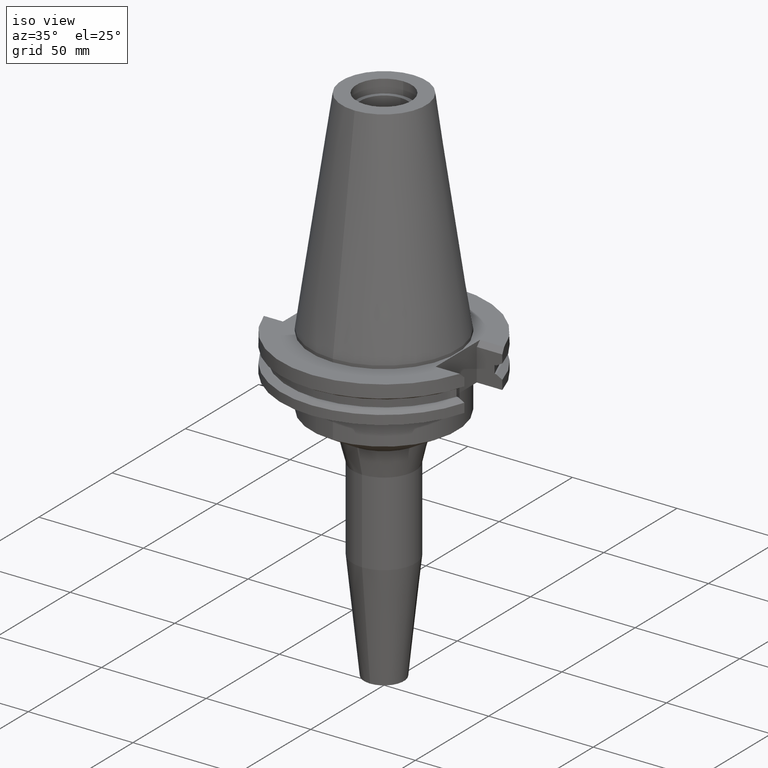
[diagram: clean part render]
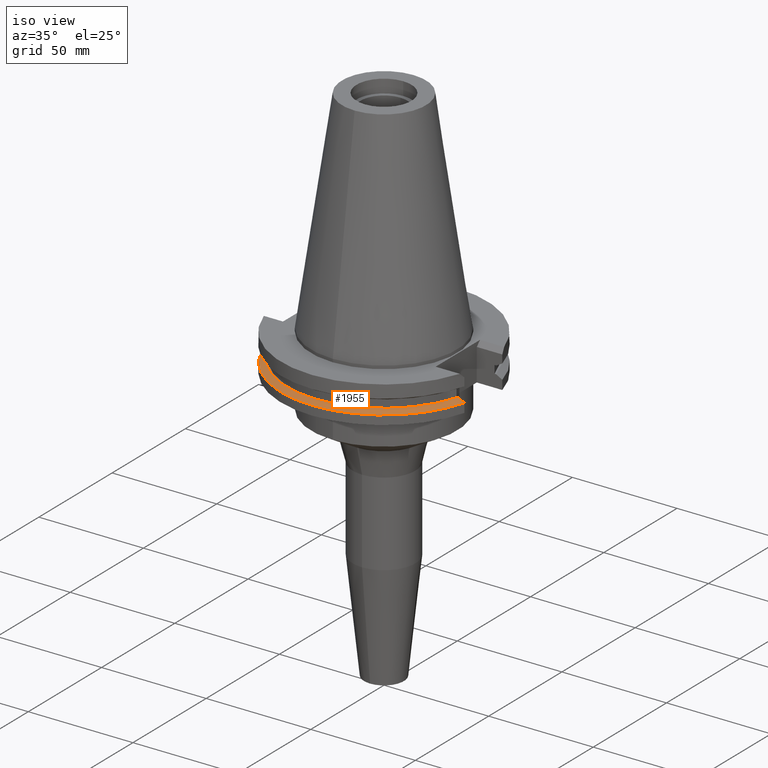
[diagram: same view with one face highlighted and labeled with its STEP entity id]
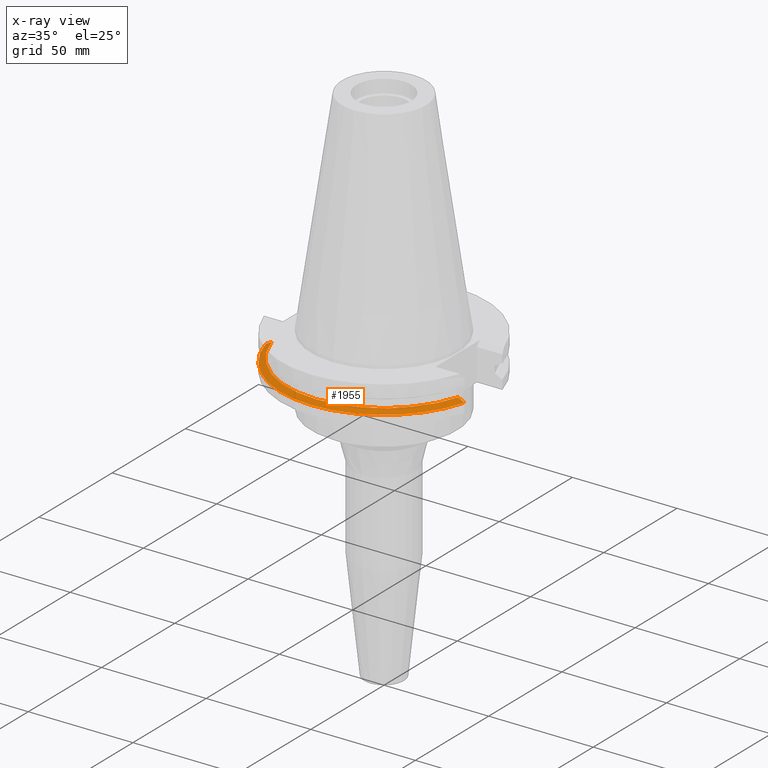
[diagram: x-ray of the same camera — body ghosted, the highlighted face saturated]
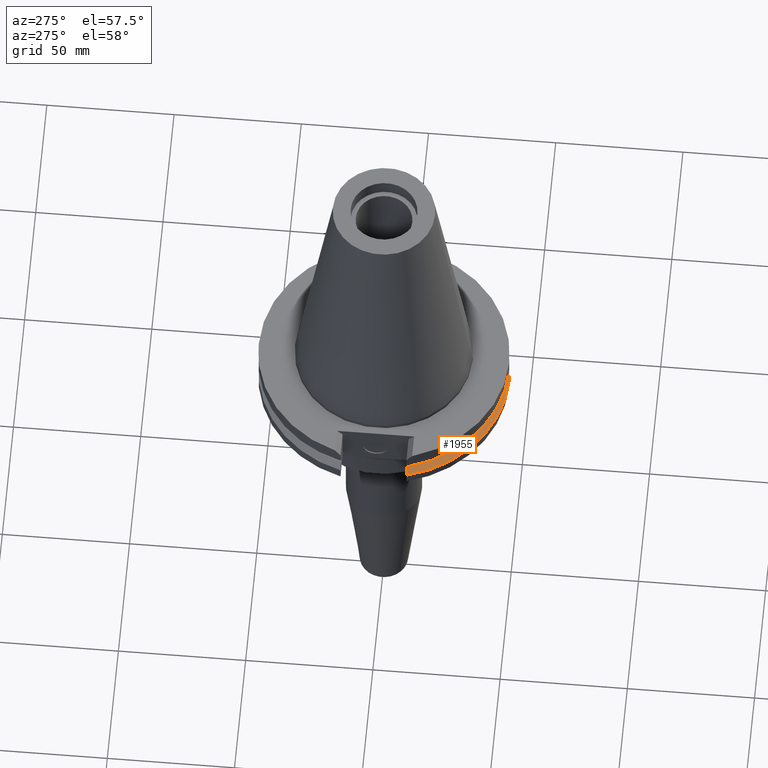
[diagram: same view with one face highlighted and labeled with its STEP entity id]
A machine part, iso view. The second image highlights one B-rep face of the part: STEP entity #1955.
The next image is the same camera in x-ray: the body ghosted, the highlighted face saturated — about 0% of this face is hidden behind the body in this view.
A second angle (auxiliary view) of the same face is appended — the face is thin or edge-on in the first view.
In plain terms, the highlighted conical surface has half-angle 60 deg.
Its self-contained STEP definition (entity closure, byte-faithful):
#750=CARTESIAN_POINT('',(0.E0,0.E0,-1.30475E1));
#751=DIRECTION('',(0.E0,0.E0,-1.E0));
#752=DIRECTION('',(9.602855947900E-1,-2.790189535476E-1,0.E0));
#753=AXIS2_PLACEMENT_3D('',#750,#751,#752);
#758=CARTESIAN_POINT('',(0.E0,0.E0,-1.30475E1));
#759=DIRECTION('',(0.E0,0.E0,-1.E0));
#760=DIRECTION('',(0.E0,-1.E0,0.E0));
#761=AXIS2_PLACEMENT_3D('',#758,#759,#760);
#782=CARTESIAN_POINT('',(4.458657636813E1,-1.2955E1,-1.30475E1));
#783=CARTESIAN_POINT('',(4.490806163993E1,-1.2955E1,-1.322573823302E1));
#784=CARTESIAN_POINT('',(4.555077636711E1,-1.2955E1,-1.358239409644E1));
#785=CARTESIAN_POINT('',(4.651414584908E1,-1.2955E1,-1.411780078680E1));
#786=CARTESIAN_POINT('',(4.715593427837E1,-1.2955E1,-1.447499824730E1));
#787=CARTESIAN_POINT('',(4.747671146204E1,-1.2955E1,-1.465366676908E1));
#792=CARTESIAN_POINT('',(0.E0,0.E0,-1.465366676908E1));
#793=DIRECTION('',(0.E0,0.E0,-1.E0));
#794=DIRECTION('',(9.647287063661E-1,-2.632461264923E-1,0.E0));
#795=AXIS2_PLACEMENT_3D('',#792,#793,#794);
#800=CARTESIAN_POINT('',(0.E0,0.E0,-1.465366676908E1));
#801=DIRECTION('',(0.E0,0.E0,-1.E0));
#802=DIRECTION('',(0.E0,-1.E0,0.E0));
#803=AXIS2_PLACEMENT_3D('',#800,#801,#802);
#808=CARTESIAN_POINT('',(-4.747671146204E1,-1.2955E1,-1.465366676908E1));
#809=CARTESIAN_POINT('',(-4.715593427836E1,-1.2955E1,-1.447499824729E1));
#810=CARTESIAN_POINT('',(-4.651414584905E1,-1.2955E1,-1.411780078678E1));
#811=CARTESIAN_POINT('',(-4.555077636708E1,-1.2955E1,-1.358239409642E1));
#812=CARTESIAN_POINT('',(-4.490806163991E1,-1.2955E1,-1.322573823301E1));
#813=CARTESIAN_POINT('',(-4.458657636813E1,-1.2955E1,-1.30475E1));
#1288=CARTESIAN_POINT('',(4.747671146204E1,-1.2955E1,-1.465366676908E1));
#1289=VERTEX_POINT('',#1288);
#1290=VERTEX_POINT('',#782);
#1300=CARTESIAN_POINT('',(-4.747671146204E1,-1.2955E1,-1.465366676908E1));
#1301=VERTEX_POINT('',#1300);
#1302=CARTESIAN_POINT('',(0.E0,-4.92125E1,-1.465366676908E1));
#1303=VERTEX_POINT('',#1302);
#1321=CARTESIAN_POINT('',(-4.458657636813E1,-1.2955E1,-1.30475E1));
#1322=VERTEX_POINT('',#1321);
#1343=CARTESIAN_POINT('',(3.687402563152E-14,-4.643053755053E1,-1.30475E1));
#1344=VERTEX_POINT('',#1343);
#1942=CARTESIAN_POINT('',(0.E0,0.E0,-1.385058338454E1));
#1943=DIRECTION('',(0.E0,0.E0,-1.E0));
#1944=DIRECTION('',(0.E0,-1.E0,0.E0));
#1945=AXIS2_PLACEMENT_3D('',#1942,#1943,#1944);
#1946=CONICAL_SURFACE('',#1945,4.782151877527E1,6.E1);
#1947=ORIENTED_EDGE('',*,*,#1822,.T.);
#1948=ORIENTED_EDGE('',*,*,#1850,.T.);
#1949=ORIENTED_EDGE('',*,*,#1848,.T.);
#1950=ORIENTED_EDGE('',*,*,#1872,.T.);
#1951=ORIENTED_EDGE('',*,*,#1934,.F.);
#1952=ORIENTED_EDGE('',*,*,#1932,.F.);
#1953=EDGE_LOOP('',(#1947,#1948,#1949,#1950,#1951,#1952));
#1954=FACE_OUTER_BOUND('',#1953,.F.);
#754=CIRCLE('',#753,4.643053755053E1);
#762=CIRCLE('',#761,4.643053755053E1);
#788=B_SPLINE_CURVE_WITH_KNOTS('',3,(#782,#783,#784,#785,#786,#787),
.UNSPECIFIED.,.F.,.F.,(4,1,1,4),(0.E0,3.333333333333E-1,6.666666666667E-1,1.E0),
.UNSPECIFIED.);
#796=CIRCLE('',#795,4.92125E1);
#804=CIRCLE('',#803,4.92125E1);
#814=B_SPLINE_CURVE_WITH_KNOTS('',3,(#808,#809,#810,#811,#812,#813),
.UNSPECIFIED.,.F.,.F.,(4,1,1,4),(0.E0,3.333333333333E-1,6.666666666667E-1,1.E0),
.UNSPECIFIED.);
#1822=EDGE_CURVE('',#1290,#1289,#788,.T.);
#1848=EDGE_CURVE('',#1303,#1301,#804,.T.);
#1850=EDGE_CURVE('',#1289,#1303,#796,.T.);
#1872=EDGE_CURVE('',#1301,#1322,#814,.T.);
#1932=EDGE_CURVE('',#1290,#1344,#754,.T.);
#1934=EDGE_CURVE('',#1344,#1322,#762,.T.);
#1955=ADVANCED_FACE('',(#1954),#1946,.T.);